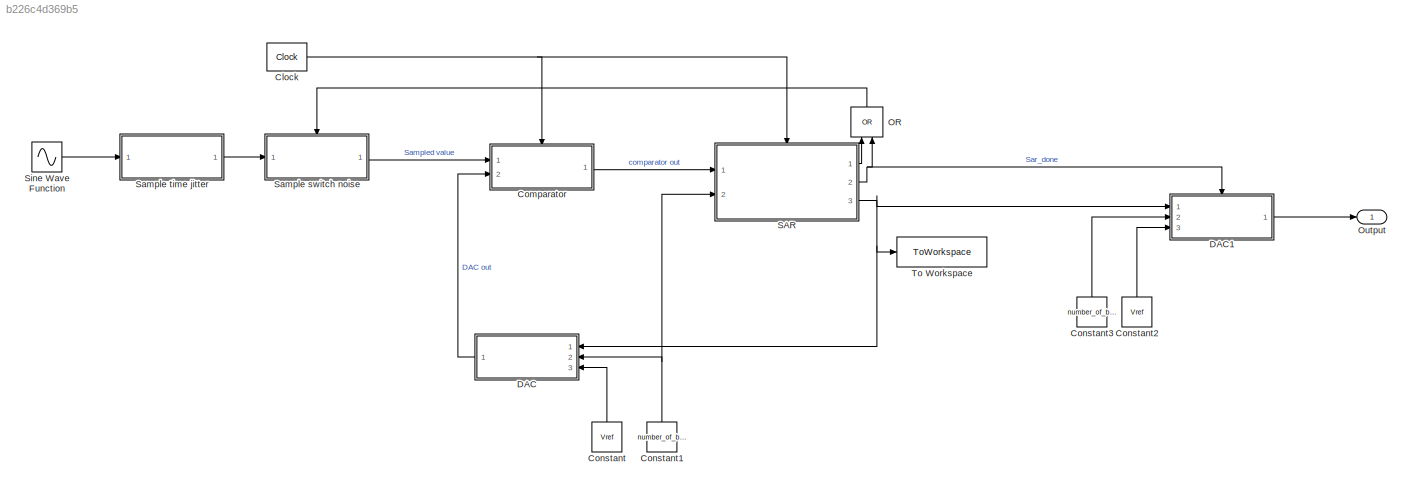
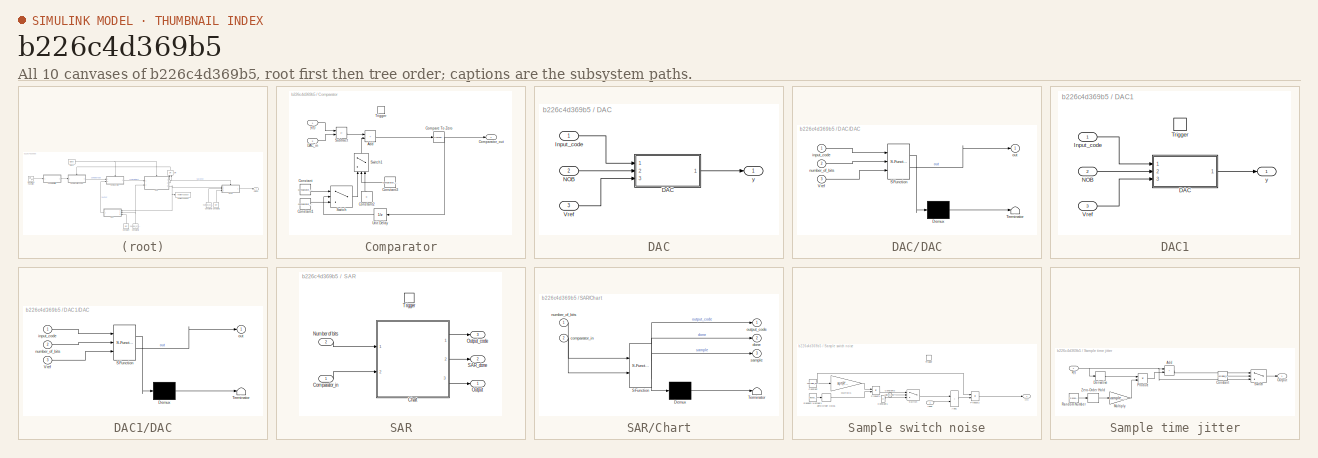
[diagram: thumbnail index - all 10 canvases of the model, root first then tree order]
MODEL slx_b226c4d369b5
KIND model
CONFIG AbsTol = auto
CONFIG EnableMultiTasking = off
CONFIG FixedStep = auto
CONFIG MaxStep = auto
CONFIG MinStep = auto
CONFIG RelTol = 1e-3
CONFIG SampleTimeConstraint = Unconstrained
CONFIG SolverName = VariableStepAuto
CONFIG StartTime = 0.0
CONFIG StopTime = 5
BLOCK [Reference] Clock  REF=simulink_extras/Flip Flops/Clock
  Ports = [0, 1]
  SourceBlock = simulink_extras/Flip Flops/Clock
  SourceProductBaseCode = SL
  SourceType = Digital clock
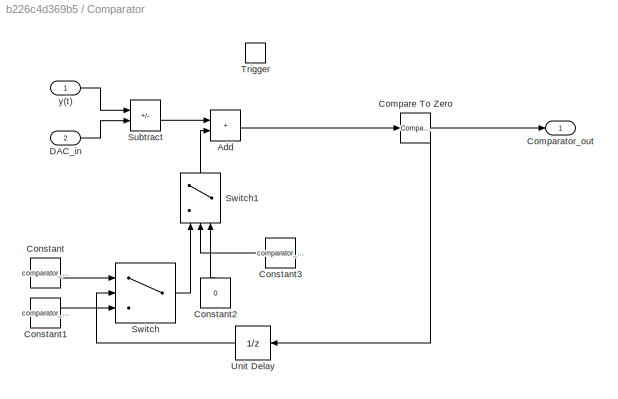
BLOCK [SubSystem] Comparator
  Ports = [2, 1, 0, 1]
  RequestExecContextInheritance = off
  TreatAsAtomicUnit = on
BLOCK [Sum] Comparator/Add
  IconShape = rectangular
  Ports = [2, 1]
BLOCK [Outport] Comparator/Comparator_out
BLOCK [Reference] Comparator/Compare To Zero  REF=simulink/Logic and Bit
Operations/Compare
To Zero
  Ports = [1, 1]
  SourceBlock = simulink/Logic and Bit\nOperations/Compare\nTo Zero
  SourceProductBaseCode = SL
  SourceType = Compare To Zero
BLOCK [Constant] Comparator/Constant
  Value = comparator_high_offset
BLOCK [Constant] Comparator/Constant1
  Value = comparator_low_offset
BLOCK [Constant] Comparator/Constant2
  NameLocation = right
  Value = 0
BLOCK [Constant] Comparator/Constant3
  Value = comparator_offset_on
BLOCK [Inport] Comparator/DAC_in
  Port = 2
BLOCK [Sum] Comparator/Subtract
  IconShape = rectangular
  Inputs = +-
  Ports = [2, 1]
BLOCK [Switch] Comparator/Switch
  Criteria = u2 > Threshold
  InputSameDT = off
  SaturateOnIntegerOverflow = off
BLOCK [Switch] Comparator/Switch1
  Criteria = u2 > Threshold
  InputSameDT = off
  NameLocation = right
  SaturateOnIntegerOverflow = off
BLOCK [TriggerPort] Comparator/Trigger
  Ports = []
  StatesWhenEnabling = held
  VariantControl = Variant
BLOCK [UnitDelay] Comparator/Unit Delay
  HasFrameUpgradeWarning = on
  SampleTime = -1
BLOCK [Inport] Comparator/y(t)
BLOCK [Constant] Constant
  NameLocation = right
  Value = Vref
BLOCK [Constant] Constant1
  NameLocation = right
  Value = number_of_bits
BLOCK [Constant] Constant2
  NameLocation = right
  Value = Vref
BLOCK [Constant] Constant3
  NameLocation = right
  Value = number_of_bits
BLOCK [SubSystem] DAC
  Ports = [3, 1]
  RequestExecContextInheritance = off
  TreatAsAtomicUnit = on
BLOCK [SubSystem] DAC/DAC
  ErrorFcn = Stateflow.Translate.translate
  PermitHierarchicalResolution = ExplicitOnly
  Ports = [3, 1]
  RequestExecContextInheritance = off
  SFBlockType = MATLAB Function
  TreatAsAtomicUnit = on
BLOCK [Demux] DAC/DAC/ Demux 
  Outputs = 1
  Ports = [1, 1]
BLOCK [S-Function] DAC/DAC/ SFunction 
  EnableBusSupport = on
  FunctionName = sf_sfun
  PortCounts = [3 2]
  Ports = [3, 2]
  SFcnIsStateOwnerBlock = off
  SFunctionDeploymentMode = off
  Tag = Stateflow S-Function 2
BLOCK [Terminator] DAC/DAC/ Terminator 
BLOCK [Inport] DAC/DAC/Vref
  Port = 3
BLOCK [Inport] DAC/DAC/input_code
BLOCK [Inport] DAC/DAC/number_of_bits
  Port = 2
BLOCK [Outport] DAC/DAC/out
BLOCK [Inport] DAC/Input_code
  VarSizeSig = Yes
BLOCK [Inport] DAC/NOB
  Port = 2
BLOCK [Inport] DAC/Vref
  Port = 3
BLOCK [Outport] DAC/y
BLOCK [SubSystem] DAC1
  Ports = [3, 1, 0, 1]
  RequestExecContextInheritance = off
BLOCK [SubSystem] DAC1/DAC
  ErrorFcn = Stateflow.Translate.translate
  PermitHierarchicalResolution = ExplicitOnly
  Ports = [3, 1]
  RequestExecContextInheritance = off
  SFBlockType = MATLAB Function
  TreatAsAtomicUnit = on
BLOCK [Demux] DAC1/DAC/ Demux 
  Outputs = 1
  Ports = [1, 1]
BLOCK [S-Function] DAC1/DAC/ SFunction 
  EnableBusSupport = on
  FunctionName = sf_sfun
  PortCounts = [3 2]
  Ports = [3, 2]
  SFcnIsStateOwnerBlock = off
  SFunctionDeploymentMode = off
  Tag = Stateflow S-Function 1
BLOCK [Terminator] DAC1/DAC/ Terminator 
BLOCK [Inport] DAC1/DAC/Vref
  Port = 3
BLOCK [Inport] DAC1/DAC/input_code
BLOCK [Inport] DAC1/DAC/number_of_bits
  Port = 2
BLOCK [Outport] DAC1/DAC/out
BLOCK [Inport] DAC1/Input_code
BLOCK [Inport] DAC1/NOB
  Port = 2
BLOCK [TriggerPort] DAC1/Trigger
  PortDimensions = 1
  Ports = []
  StatesWhenEnabling = held
  VariantControl = Variant
BLOCK [Inport] DAC1/Vref
  Port = 3
BLOCK [Outport] DAC1/y
BLOCK [Logic] OR
  AllPortsSameDT = off
  IconShape = distinctive
  NameLocation = right
  Operator = OR
  OutDataTypeStr = boolean
  Ports = [2, 1]
BLOCK [Outport] Output
BLOCK [SubSystem] SAR
  Ports = [2, 3, 0, 1]
  RequestExecContextInheritance = off
  TreatAsAtomicUnit = on
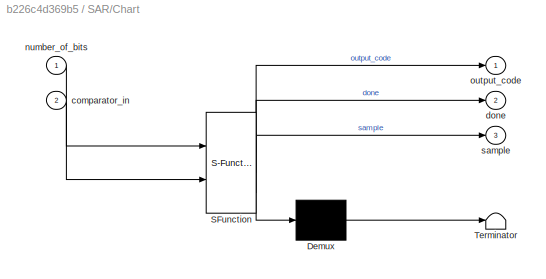
BLOCK [SubSystem] SAR/Chart
  ErrorFcn = Stateflow.Translate.translate
  PermitHierarchicalResolution = ExplicitOnly
  Ports = [2, 3]
  RequestExecContextInheritance = off
  SFBlockType = Chart
  TreatAsAtomicUnit = on
BLOCK [Demux] SAR/Chart/ Demux 
  Outputs = 1
  Ports = [1, 1]
BLOCK [S-Function] SAR/Chart/ SFunction 
  EnableBusSupport = on
  FunctionName = sf_sfun
  PortCounts = [2 4]
  Ports = [2, 4]
  SFcnIsStateOwnerBlock = off
  SFunctionDeploymentMode = off
  Tag = Stateflow S-Function 3
BLOCK [Terminator] SAR/Chart/ Terminator 
BLOCK [Inport] SAR/Chart/comparator_in
  Port = 2
BLOCK [Outport] SAR/Chart/done
  Port = 2
BLOCK [Inport] SAR/Chart/number_of_bits
BLOCK [Outport] SAR/Chart/output_code
BLOCK [Outport] SAR/Chart/sample
  Port = 3
BLOCK [Inport] SAR/Comparator_in
  LatchByDelayingOutsideSignal = on
BLOCK [Inport] SAR/Number of bits
  Port = 2
BLOCK [Outport] SAR/Output
BLOCK [Outport] SAR/Output_code
  InitialOutput = zeros(number_of_bits,1)
  Port = 3
  VarSizeSig = Yes
BLOCK [Outport] SAR/SAR_done
  Port = 2
BLOCK [TriggerPort] SAR/Trigger
  Ports = []
  StatesWhenEnabling = held
  VariantControl = Variant
BLOCK [SubSystem] Sample switch noise
  Ports = [1, 1, 0, 1]
  RequestExecContextInheritance = off
  TreatAsAtomicUnit = on
BLOCK [Sum] Sample switch noise/Add1
  IconShape = rectangular
  Ports = [2, 1]
BLOCK [Constant] Sample switch noise/Constant
  Value = sampling_gain
BLOCK [Constant] Sample switch noise/Constant1
  Value = 0
BLOCK [Constant] Sample switch noise/Constant2
  Value = switch_noise_on
BLOCK [Inport] Sample switch noise/Input
BLOCK [Gain] Sample switch noise/Multiply1
  Gain = sqrt(k*T/(sampling_gain*Cf))
  OutDataTypeStr = Inherit: Same as input
BLOCK [Product] Sample switch noise/Product1
  Ports = [2, 1]
BLOCK [Product] Sample switch noise/Product2
  Ports = [2, 1]
BLOCK [RandomNumber] Sample switch noise/Random Number1
BLOCK [Switch] Sample switch noise/Switch
  Criteria = u2 > Threshold
  InputSameDT = off
  SaturateOnIntegerOverflow = off
BLOCK [TriggerPort] Sample switch noise/Trigger
  Ports = []
  StatesWhenEnabling = held
  VariantControl = Variant
BLOCK [ZeroOrderHold] Sample switch noise/Zero-Order Hold1
  SampleTime = -1
BLOCK [Outport] Sample switch noise/y(t)
BLOCK [SubSystem] Sample time jitter
  Ports = [1, 1]
  RequestExecContextInheritance = off
BLOCK [Sum] Sample time jitter/Add
  IconShape = rectangular
  Ports = [2, 1]
BLOCK [Constant] Sample time jitter/Constant
  Value = sampling_jitter_on
BLOCK [Derivative] Sample time jitter/Derivative
BLOCK [Gain] Sample time jitter/Multiply
  Gain = sample_time_jitter
BLOCK [Outport] Sample time jitter/Output
BLOCK [Product] Sample time jitter/Product
  Ports = [2, 1]
BLOCK [RandomNumber] Sample time jitter/Random Number
  SampleTime = clk_period
BLOCK [Switch] Sample time jitter/Switch
  Criteria = u2 > Threshold
  InputSameDT = off
  SaturateOnIntegerOverflow = off
BLOCK [ZeroOrderHold] Sample time jitter/Zero-Order Hold
  SampleTime = -1
BLOCK [Inport] Sample time jitter/x(t)
BLOCK [Sin] Sine Wave Function
  Amplitude = sine_amplitude
  Bias = sine_bias
  Frequency = sine_frequency_rad
  Ports = [0, 1]
  SampleTime = 0
BLOCK [ToWorkspace] To Workspace
  FixptAsFi = on
  MaxDataPoints = inf
  Ports = [1]
  SampleTime = -1
  SaveFormat = Structure
  VariableName = simout
NET Clock:1 -> Comparator:trigger, SAR:trigger
LINE Comparator/Add:1 -> Comparator/Compare To Zero:1
NET Comparator/Compare To Zero:1 -> Comparator/Comparator_out:1, Comparator/Unit Delay:1
LINE Comparator/Constant1:1 -> Comparator/Switch:3
LINE Comparator/Constant2:1 -> Comparator/Switch1:3
LINE Comparator/Constant3:1 -> Comparator/Switch1:2
LINE Comparator/Constant:1 -> Comparator/Switch:1
LINE Comparator/DAC_in:1 -> Comparator/Subtract:2
LINE Comparator/Subtract:1 -> Comparator/Add:1
LINE Comparator/Switch1:1 -> Comparator/Add:2
LINE Comparator/Switch:1 -> Comparator/Switch1:1
LINE Comparator/Unit Delay:1 -> Comparator/Switch:2
LINE Comparator/y(t):1 -> Comparator/Subtract:1
LINE Comparator:1 -> SAR:1
NET Constant1:1 -> DAC:2, SAR:2
LINE Constant2:1 -> DAC1:3
LINE Constant3:1 -> DAC1:2
LINE Constant:1 -> DAC:3
LINE DAC/DAC:1 -> DAC/y:1
LINE DAC/Input_code:1 -> DAC/DAC:1
LINE DAC/NOB:1 -> DAC/DAC:2
LINE DAC/Vref:1 -> DAC/DAC:3
LINE DAC1/DAC:1 -> DAC1/y:1
LINE DAC1/Input_code:1 -> DAC1/DAC:1
LINE DAC1/NOB:1 -> DAC1/DAC:2
LINE DAC1/Vref:1 -> DAC1/DAC:3
LINE DAC1:1 -> Output:1
LINE DAC:1 -> Comparator:2
LINE OR:1 -> Sample switch noise:trigger
LINE SAR/Chart:1 -> SAR/Output_code:1
LINE SAR/Chart:2 -> SAR/SAR_done:1
LINE SAR/Chart:3 -> SAR/Output:1
LINE SAR/Comparator_in:1 -> SAR/Chart:2
LINE SAR/Number of bits:1 -> SAR/Chart:1
LINE SAR:1 -> OR:1
NET SAR:2 -> DAC1:trigger, OR:2
NET SAR:3 -> DAC1:1, DAC:1, To Workspace:1
LINE Sample switch noise/Add1:1 -> Sample switch noise/Product2:2
LINE Sample switch noise/Constant1:1 -> Sample switch noise/Switch:3
LINE Sample switch noise/Constant2:1 -> Sample switch noise/Switch:2
NET Sample switch noise/Constant:1 -> Sample switch noise/Multiply1:1, Sample switch noise/Product2:1
LINE Sample switch noise/Input:1 -> Sample switch noise/Add1:2
LINE Sample switch noise/Multiply1:1 -> Sample switch noise/Product1:1
LINE Sample switch noise/Product1:1 -> Sample switch noise/Switch:1
LINE Sample switch noise/Product2:1 -> Sample switch noise/y(t):1
LINE Sample switch noise/Random Number1:1 -> Sample switch noise/Zero-Order Hold1:1
LINE Sample switch noise/Switch:1 -> Sample switch noise/Add1:1
LINE Sample switch noise/Zero-Order Hold1:1 -> Sample switch noise/Product1:2
LINE Sample switch noise:1 -> Comparator:1
LINE Sample time jitter/Add:1 -> Sample time jitter/Switch:1
LINE Sample time jitter/Constant:1 -> Sample time jitter/Switch:2
LINE Sample time jitter/Derivative:1 -> Sample time jitter/Product:1
LINE Sample time jitter/Multiply:1 -> Sample time jitter/Product:2
LINE Sample time jitter/Product:1 -> Sample time jitter/Add:2
LINE Sample time jitter/Random Number:1 -> Sample time jitter/Zero-Order Hold:1
LINE Sample time jitter/Switch:1 -> Sample time jitter/Output:1
LINE Sample time jitter/Zero-Order Hold:1 -> Sample time jitter/Multiply:1
NET Sample time jitter/x(t):1 -> Sample time jitter/Add:1, Sample time jitter/Derivative:1, Sample time jitter/Switch:3
LINE Sample time jitter:1 -> Sample switch noise:1
LINE Sine Wave Function:1 -> Sample time jitter:1
note: NET lines group one-source signal fan-out (src -> all destinations, sorted); 1:1 wires keep LINE
CHART DAC1/DAC states=1 transitions=1
  STATE_LABEL 'eML_blk_kernel()'
  STATE_LABEL "SCRIPT:\nfunction out = fcn(input_code, number_of_bits, Vref)\nout = Vref*bi2de(input_code.', 'left-msb')/(2^(number_of_bits));\nend\n\n\n"
CHART DAC/DAC states=1 transitions=1
  STATE_LABEL 'eML_blk_kernel()'
  STATE_LABEL "SCRIPT:\nfunction out = fcn(input_code, number_of_bits, Vref)\nout = Vref/(2^number_of_bits)*(bi2de(input_code.', 'left-msb'));\nend\n\n\n"
CHART SAR/Chart states=5 transitions=9
  STATE_LABEL 'SAR\ncycle=cycle+1;\noutput_code(cycle-1, 1)=comparator_in;\ndone=false;\noutput_code(cycle, 1) = 1;\n'
  STATE_LABEL 'Initial\ndone=false;\noutput_code = zeros(number_of_bits, 1);\noutput_code(1,1) = 1;\ncycle=1;\nsample=false;'
  STATE_LABEL 'AlmostDone\ndone=false;\noutput_code(number_of_bits-1,1) = comparator_in;\noutput_code(number_of_bits,1) = 1;'
  STATE_LABEL 'Start\nsample = true;\ndone = false;\noutput_code = zeros(number_of_bits, 1);'
  STATE_LABEL 'Done\ndone=true;\noutput_code(number_of_bits, 1) = comparator_in;'
CHART  states=0 transitions=0
CHART  states=0 transitions=0
CHART  states=0 transitions=0
